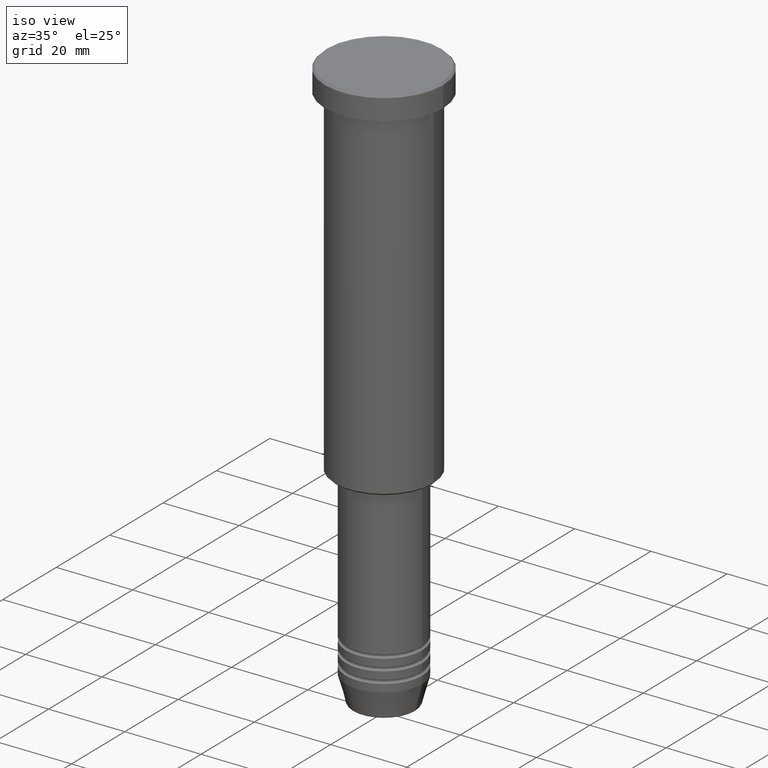
[diagram: clean part render]
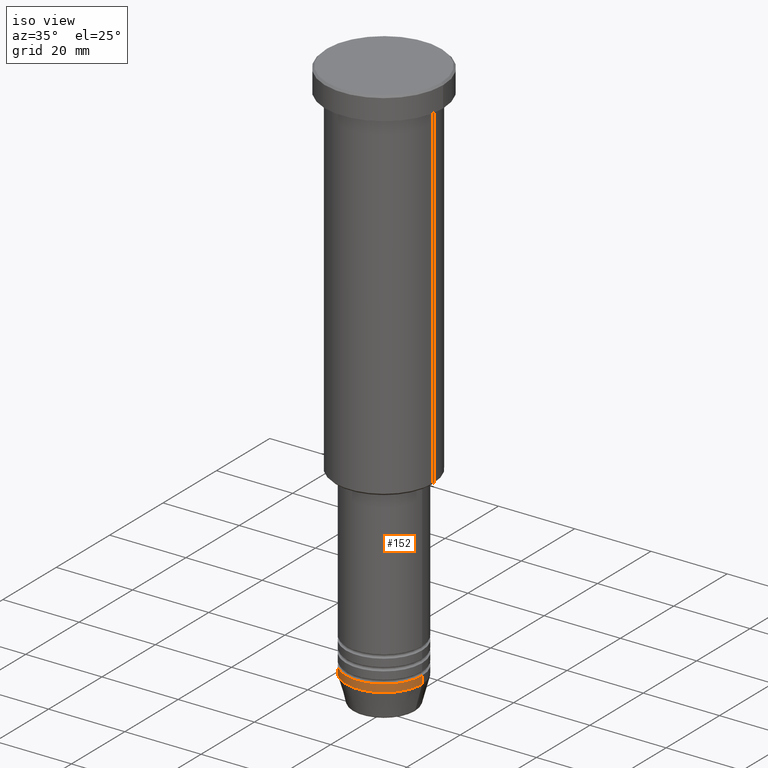
[diagram: same view with one face highlighted and labeled with its STEP entity id]
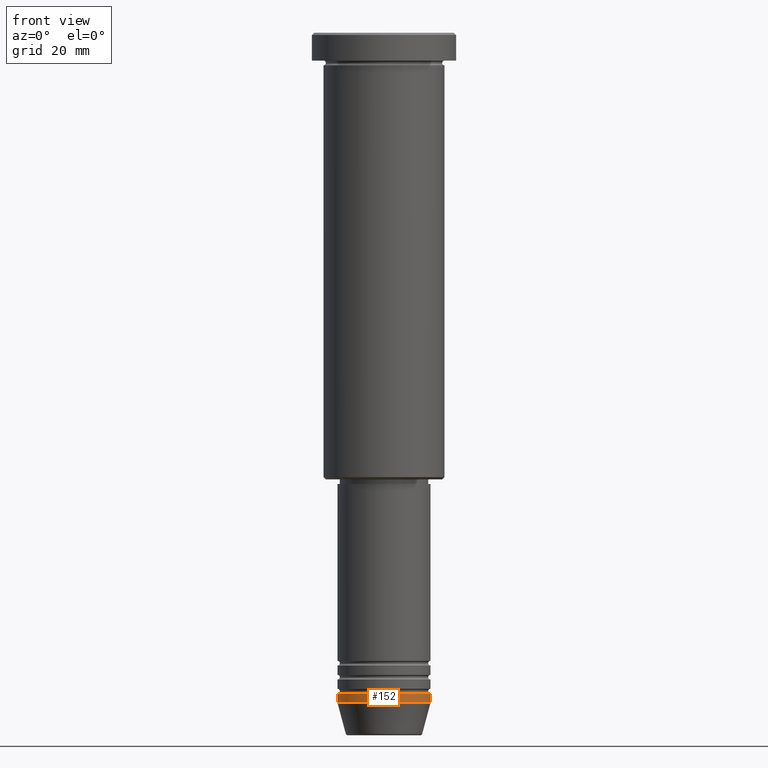
[diagram: same view with one face highlighted and labeled with its STEP entity id]
A machine part, iso view. The second image highlights one B-rep face of the part: STEP entity #152.
A second angle (front view) of the same face is appended — the face is thin or edge-on in the first view.
In plain terms, the highlighted cylindrical surface (partial cylindrical patch) has radius 10 mm, axis along (-0, -0, 1).
Its self-contained STEP definition (entity closure, byte-faithful):
#32 = ORIENTED_EDGE ( 'NONE', *, *, #251, .T. ) ;
#42 = CARTESIAN_POINT ( 'NONE',  ( 10.00000000000000000, 0.000000000000000000, -144.0000000000000284 ) ) ;
#52 = DIRECTION ( 'NONE',  ( -0.000000000000000000, -0.000000000000000000, 1.000000000000000000 ) ) ;
#56 = DIRECTION ( 'NONE',  ( -0.000000000000000000, -0.000000000000000000, 1.000000000000000000 ) ) ;
#100 = AXIS2_PLACEMENT_3D ( 'NONE', #138, #56, #148 ) ;
#109 = DIRECTION ( 'NONE',  ( 1.000000000000000000, 0.000000000000000000, 0.000000000000000000 ) ) ;
#129 = FACE_OUTER_BOUND ( 'NONE', #964, .T. ) ;
#138 = CARTESIAN_POINT ( 'NONE',  ( 0.000000000000000000, 0.000000000000000000, -144.0000000000000284 ) ) ;
#148 = DIRECTION ( 'NONE',  ( 1.000000000000000000, 0.000000000000000000, 0.000000000000000000 ) ) ;
#152 = ADVANCED_FACE ( 'NONE', ( #129 ), #754, .T. ) ;
#177 = VERTEX_POINT ( 'NONE', #398 ) ;
#195 = CARTESIAN_POINT ( 'NONE',  ( 10.00000000000000000, 0.000000000000000000, -142.0000000000000284 ) ) ;
#231 = CARTESIAN_POINT ( 'NONE',  ( 10.00000000000000000, 0.000000000000000000, 0.000000000000000000 ) ) ;
#251 = EDGE_CURVE ( 'NONE', #1035, #1162, #995, .T. ) ;
#255 = AXIS2_PLACEMENT_3D ( 'NONE', #295, #491, #109 ) ;
#295 = CARTESIAN_POINT ( 'NONE',  ( 0.000000000000000000, 0.000000000000000000, -142.0000000000000284 ) ) ;
#315 = EDGE_CURVE ( 'NONE', #1162, #644, #700, .T. ) ;
#349 = CARTESIAN_POINT ( 'NONE',  ( -10.00000000000000000, 1.224646799147353256E-15, 0.000000000000000000 ) ) ;
#367 = DIRECTION ( 'NONE',  ( -0.000000000000000000, -0.000000000000000000, 1.000000000000000000 ) ) ;
#370 = CIRCLE ( 'NONE', #255, 10.00000000000000000 ) ;
#398 = CARTESIAN_POINT ( 'NONE',  ( -10.00000000000000000, 1.224646799147353256E-15, -142.0000000000000284 ) ) ;
#491 = DIRECTION ( 'NONE',  ( -0.000000000000000000, -0.000000000000000000, 1.000000000000000000 ) ) ;
#558 = VECTOR ( 'NONE', #52, 1000.000000000000000 ) ;
#587 = CARTESIAN_POINT ( 'NONE',  ( 0.000000000000000000, 0.000000000000000000, 0.000000000000000000 ) ) ;
#611 = EDGE_CURVE ( 'NONE', #177, #644, #370, .T. ) ;
#644 = VERTEX_POINT ( 'NONE', #195 ) ;
#700 = LINE ( 'NONE', #231, #558 ) ;
#743 = CARTESIAN_POINT ( 'NONE',  ( -10.00000000000000000, 1.224646799147353256E-15, -144.0000000000000284 ) ) ;
#745 = DIRECTION ( 'NONE',  ( -0.000000000000000000, -0.000000000000000000, 1.000000000000000000 ) ) ;
#754 = CYLINDRICAL_SURFACE ( 'NONE', #1036, 10.00000000000000000 ) ;
#796 = ORIENTED_EDGE ( 'NONE', *, *, #315, .T. ) ;
#868 = ORIENTED_EDGE ( 'NONE', *, *, #611, .F. ) ;
#895 = EDGE_CURVE ( 'NONE', #1035, #177, #981, .T. ) ;
#964 = EDGE_LOOP ( 'NONE', ( #1155, #32, #796, #868 ) ) ;
#981 = LINE ( 'NONE', #349, #1095 ) ;
#995 = CIRCLE ( 'NONE', #100, 10.00000000000000000 ) ;
#1035 = VERTEX_POINT ( 'NONE', #743 ) ;
#1036 = AXIS2_PLACEMENT_3D ( 'NONE', #587, #745, #1109 ) ;
#1095 = VECTOR ( 'NONE', #367, 1000.000000000000000 ) ;
#1109 = DIRECTION ( 'NONE',  ( 1.000000000000000000, 0.000000000000000000, 0.000000000000000000 ) ) ;
#1155 = ORIENTED_EDGE ( 'NONE', *, *, #895, .F. ) ;
#1162 = VERTEX_POINT ( 'NONE', #42 ) ;